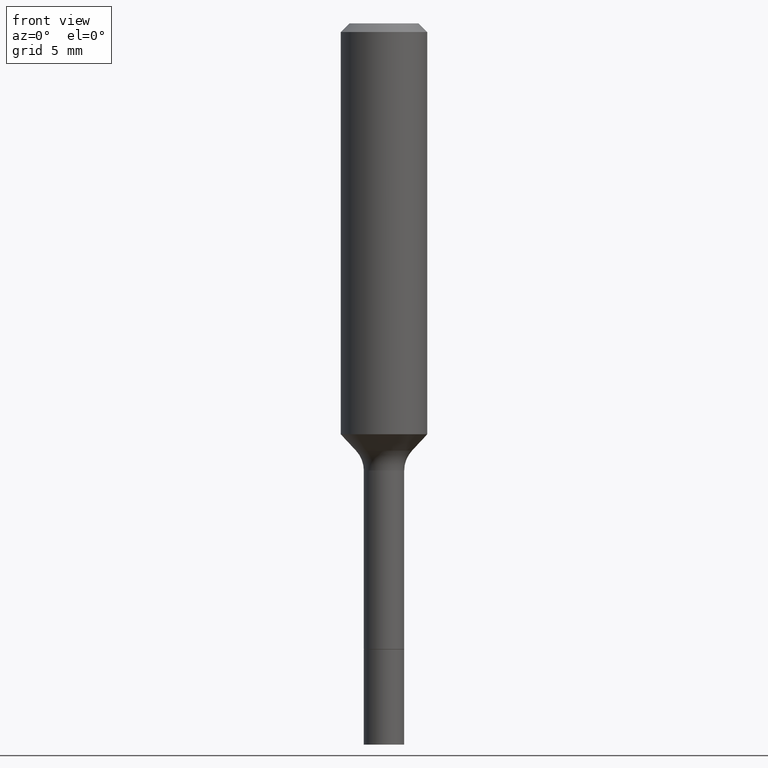
[diagram: clean part render]
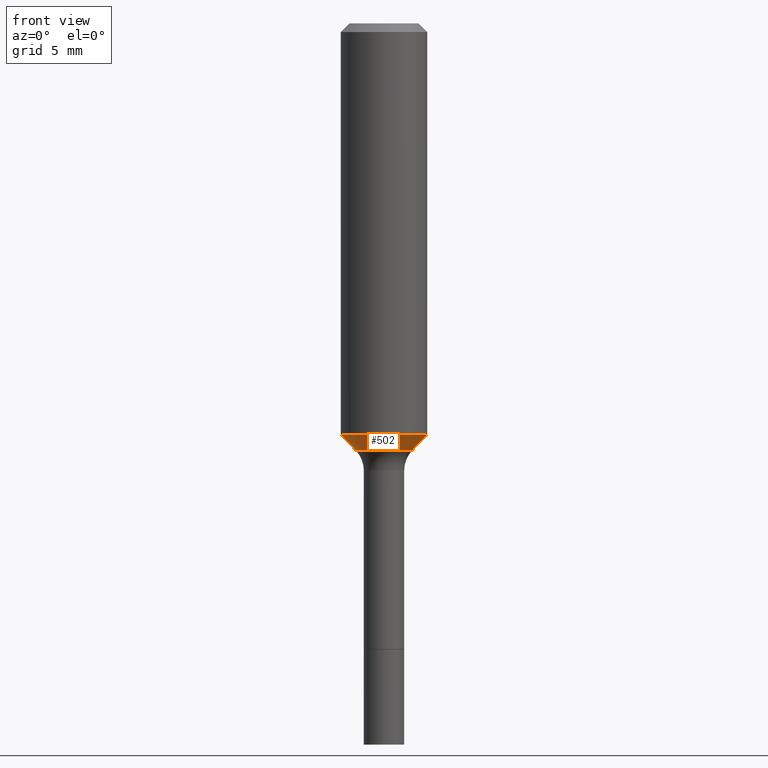
[diagram: same view with one face highlighted and labeled with its STEP entity id]
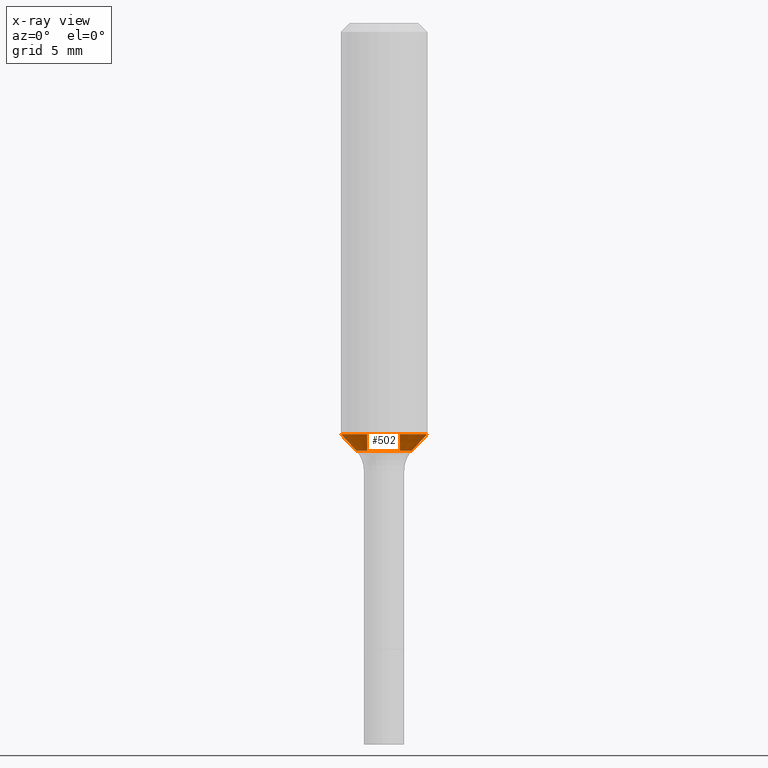
[diagram: x-ray of the same camera — body ghosted, the highlighted face saturated]
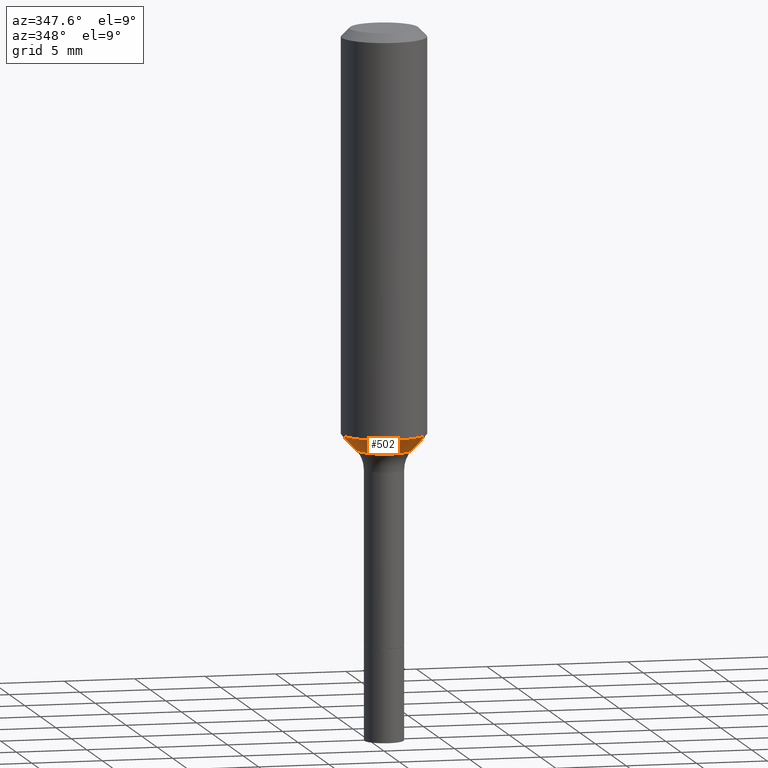
[diagram: same view with one face highlighted and labeled with its STEP entity id]
A machine part, front view. The second image highlights one B-rep face of the part: STEP entity #502.
The next image is the same camera in x-ray: the body ghosted, the highlighted face saturated — about 0% of this face is hidden behind the body in this view.
A second angle (auxiliary view) of the same face is appended — the face is thin or edge-on in the first view.
In plain terms, the highlighted conical surface has half-angle 43 deg.
Its self-contained STEP definition (entity closure, byte-faithful):
#6 = VERTEX_POINT ( 'NONE', #434 ) ;
#14 = VECTOR ( 'NONE', #181, 39.37007874015748854 ) ;
#17 = DIRECTION ( 'NONE',  ( 1.000000000000000000, -6.982962677686269077E-15, 0.000000000000000000 ) ) ;
#19 = CARTESIAN_POINT ( 'NONE',  ( 0.07659170387046630724, -4.605695219823535710E-15, -1.165940131194999951 ) ) ;
#26 = CARTESIAN_POINT ( 'NONE',  ( 0.1181000000000001354, -4.740132593927196007E-15, -1.121427933219249384 ) ) ;
#30 = EDGE_CURVE ( 'NONE', #211, #6, #63, .T. ) ;
#32 = DIRECTION ( 'NONE',  ( -2.445468806185136597E-29, 3.491481338843145583E-15, 1.000000000000000000 ) ) ;
#47 = EDGE_CURVE ( 'NONE', #211, #483, #472, .T. ) ;
#52 = DIRECTION ( 'NONE',  ( -2.445468806185136597E-29, 3.491481338843145583E-15, 1.000000000000000000 ) ) ;
#56 = VERTEX_POINT ( 'NONE', #26 ) ;
#63 = CIRCLE ( 'NONE', #147, 0.07659170387046630724 ) ;
#78 = CONICAL_SURFACE ( 'NONE', #382, 0.07659170387046630724, 0.7504915783575636379 ) ;
#99 = ORIENTED_EDGE ( 'NONE', *, *, #498, .T. ) ;
#130 = ORIENTED_EDGE ( 'NONE', *, *, #317, .F. ) ;
#137 = CARTESIAN_POINT ( 'NONE',  ( -0.07659170387046630724, -3.526641422229185423E-15, -1.165940131194999951 ) ) ;
#139 = DIRECTION ( 'NONE',  ( -0.6819983600624998088, 7.399397606724291309E-15, 0.7313537016191691276 ) ) ;
#147 = AXIS2_PLACEMENT_3D ( 'NONE', #389, #32, #423 ) ;
#174 = CARTESIAN_POINT ( 'NONE',  ( 2.742417029072343247E-29, -3.915444701692446956E-15, -1.121427933219249384 ) ) ;
#181 = DIRECTION ( 'NONE',  ( 0.6819983600624998088, -2.208861293262489214E-15, 0.7313537016191691276 ) ) ;
#209 = EDGE_LOOP ( 'NONE', ( #249, #452, #99, #130 ) ) ;
#211 = VERTEX_POINT ( 'NONE', #405 ) ;
#212 = LINE ( 'NONE', #19, #14 ) ;
#238 = CIRCLE ( 'NONE', #313, 0.1181000000000001354 ) ;
#249 = ORIENTED_EDGE ( 'NONE', *, *, #47, .F. ) ;
#313 = AXIS2_PLACEMENT_3D ( 'NONE', #174, #52, #17 ) ;
#314 = CARTESIAN_POINT ( 'NONE',  ( 2.851270220716778580E-29, -4.070858210275671756E-15, -1.165940131194999951 ) ) ;
#317 = EDGE_CURVE ( 'NONE', #483, #56, #238, .T. ) ;
#348 = DIRECTION ( 'NONE',  ( 1.000000000000000000, -6.982962677686261977E-15, 0.000000000000000000 ) ) ;
#357 = DIRECTION ( 'NONE',  ( -2.445468806185136597E-29, 3.491481338843145583E-15, 1.000000000000000000 ) ) ;
#382 = AXIS2_PLACEMENT_3D ( 'NONE', #314, #357, #348 ) ;
#388 = CARTESIAN_POINT ( 'NONE',  ( -0.1181000000000001354, -3.076293730759767576E-15, -1.121427933219249384 ) ) ;
#389 = CARTESIAN_POINT ( 'NONE',  ( 2.851270220716778580E-29, -4.070858210275671756E-15, -1.165940131194999951 ) ) ;
#400 = VECTOR ( 'NONE', #139, 39.37007874015748854 ) ;
#405 = CARTESIAN_POINT ( 'NONE',  ( -0.07659170387046634887, -3.526641422229185029E-15, -1.165940131194999951 ) ) ;
#423 = DIRECTION ( 'NONE',  ( 1.000000000000000000, -6.982962677686261977E-15, 0.000000000000000000 ) ) ;
#434 = CARTESIAN_POINT ( 'NONE',  ( 0.07659170387046634887, -4.605695219823537287E-15, -1.165940131194999951 ) ) ;
#452 = ORIENTED_EDGE ( 'NONE', *, *, #30, .T. ) ;
#462 = FACE_OUTER_BOUND ( 'NONE', #209, .T. ) ;
#472 = LINE ( 'NONE', #137, #400 ) ;
#483 = VERTEX_POINT ( 'NONE', #388 ) ;
#498 = EDGE_CURVE ( 'NONE', #6, #56, #212, .T. ) ;
#502 = ADVANCED_FACE ( 'NONE', ( #462 ), #78, .T. ) ;